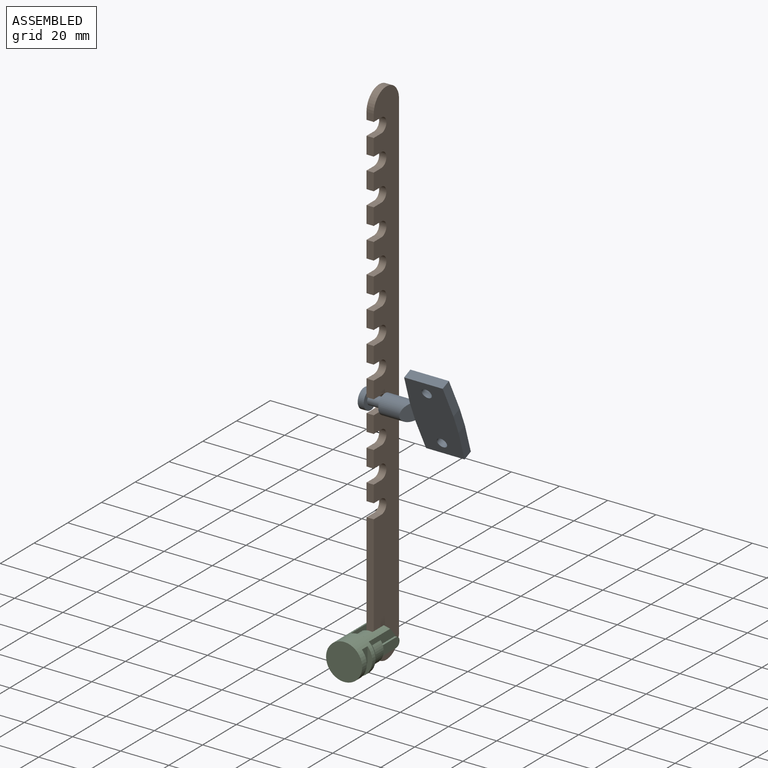
[diagram: assembled view]
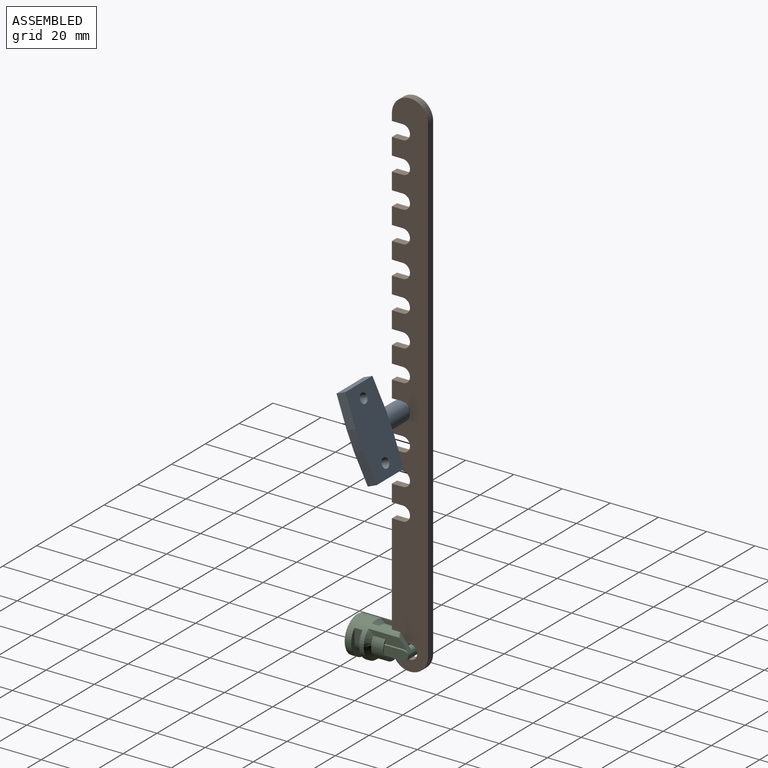
[diagram: assembled view, second angle]
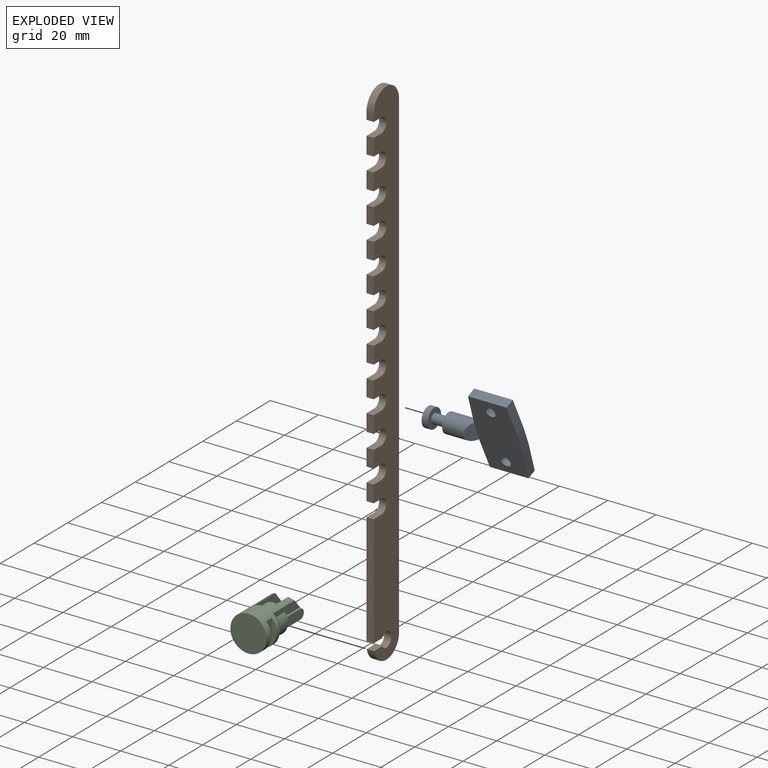
[diagram: exploded view]
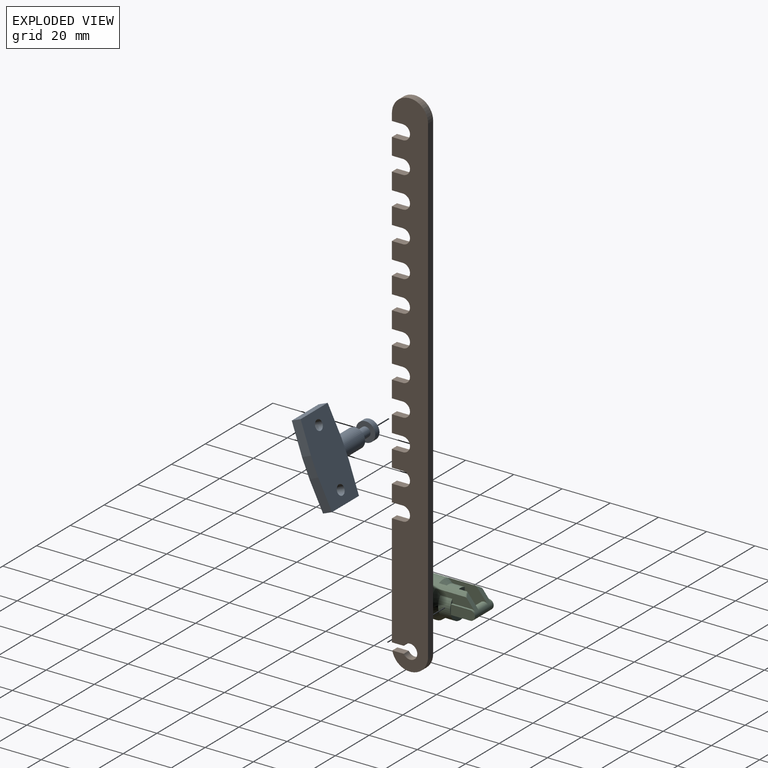
[diagram: exploded view, second angle]
ASSEMBLY  parts=3 mates=2
PART A: 20 faces, bbox 38x8x34 mm
  f0: plane 4x4mm, normal (1,0,0), area 3.4mm2, adj f3,f11,f18
  f1: plane 13x4mm, normal (-1,0,-0.08), area 52.2mm2, adj f2,f9,f11,f12
  f2: plane 16x4mm, normal (0,0,-1), area 64mm2, adj f1,f3,f11,f12
  f3: plane 13x4mm, normal (1,0,-0.08), area 52.2mm2, adj f0,f2,f11,f12
  f4: plane 4x4mm, normal (1,0,0), area 3.4mm2, adj f5,f11,f18
  f5: plane 13x4mm, normal (1,0,0.08), area 52.2mm2, adj f4,f6,f11,f12
  f6: plane 16x4mm, normal (0,0,1), area 64mm2, adj f5,f7,f11,f12
  f7: plane 13x4mm, normal (-1,0,0.08), area 52.2mm2, adj f6,f9,f11,f12
  f8: cylinder r=2.05mm len=4.1mm, axis (0,1,0), area 51.5mm2, adj f11,f12
  f9: plane 8x4mm, normal (-1,0,0), area 32mm2, adj f1,f7,f11,f12
  f10: cylinder r=2.05mm len=4.1mm, axis (0,1,0), area 51.5mm2, adj f11,f12
  f11: plane 34x18mm, normal (0,-1,0), area 559.6mm2, adj f0,f1,f2,f3,f4,f5,f6,f7
  f12: plane 34x18mm, normal (0,1,0), area 559.6mm2, adj f1,f2,f3,f5,f6,f7,f8,f9
  f13: plane 8x8mm, normal (1,0,0), area 37.7mm2, adj f14,f18
  f14: cylinder r=2mm len=6mm, axis (-1,0,0), area 75.4mm2, adj f13,f15
  f15: plane 8x8mm, normal (-1,0,0), area 37.7mm2, adj f14,f16
  f16: cylinder r=4mm len=8mm, axis (-1,0,0), area 62.8mm2, adj f15,f17
  f17: plane 8x8mm, normal (1,0,0), area 50.3mm2, adj f16
  f18: cylinder r=4mm len=11.5mm, axis (-1,0,0), area 266.1mm2, adj f0,f4,f13,f19
  f19: plane 8x4mm, normal (-0.81,0.58,0), area 30.9mm2, adj f12,f18
PART B: 57 faces, bbox 215x3x15 mm
  f0: plane 7x3mm, normal (0,0,-1), area 21mm2, adj f13,f14,f51,f55
  f1: plane 7x3mm, normal (0,0,-1), area 21mm2, adj f13,f14,f48,f52
  f2: plane 7x3mm, normal (0,0,-1), area 21mm2, adj f13,f14,f45,f49
  f3: plane 7x3mm, normal (0,0,-1), area 21mm2, adj f13,f14,f42,f46
  f4: plane 7x3mm, normal (0,0,-1), area 21mm2, adj f13,f14,f39,f43
  f5: plane 7x3mm, normal (0,0,-1), area 21mm2, adj f13,f14,f36,f40
  f6: plane 7x3mm, normal (0,0,-1), area 21mm2, adj f13,f14,f33,f37
  f7: plane 7x3mm, normal (0,0,-1), area 21mm2, adj f13,f14,f30,f34
  f8: plane 7x3mm, normal (0,0,-1), area 21mm2, adj f13,f14,f27,f31
  f9: plane 7x3mm, normal (0,0,-1), area 21mm2, adj f13,f14,f24,f28
  f10: plane 7x3mm, normal (0,0,-1), area 21mm2, adj f13,f14,f21,f25
  f11: plane 3x3mm, normal (0,0,-1), area 9mm2, adj f13,f14,f16,f22
  f12: cylinder r=7.5mm len=14.85mm, axis (0,1,0), area 66.2mm2, adj f13,f14,f17,f18
  f13: plane 215x15mm, normal (0,-1,0), area 2641mm2, adj f0,f1,f2,f3,f4,f5,f6,f7
  f14: plane 215x15mm, normal (0,1,0), area 2641mm2, adj f0,f1,f2,f3,f4,f5,f6,f7
  f15: plane 46.5x3mm, normal (0,0,-1), area 139.5mm2, adj f13,f14,f19,f54
  f16: cylinder r=7.5mm len=15mm, axis (0,1,0), area 70.7mm2, adj f11,f13,f14,f17
  f17: plane 200x3mm, normal (0,0,1), area 600mm2, adj f12,f13,f14,f16
  f18: plane 4.75x3mm, normal (1,0,0), area 14.3mm2, adj f12,f13,f14,f20
  f19: plane 4.9x3mm, normal (-1,0,0), area 14.7mm2, adj f13,f14,f15,f20
  f20: cylinder r=3mm len=6mm, axis (0,1,0), area 47.1mm2, adj f13,f14,f18,f19
  f21: plane 4.5x3mm, normal (1,0,0), area 13.5mm2, adj f10,f13,f14,f23
  f22: plane 4.5x3mm, normal (-1,0,0), area 13.5mm2, adj f11,f13,f14,f23
  f23: cylinder r=3mm len=6mm, axis (0,1,0), area 28.3mm2, adj f13,f14,f21,f22
  f24: plane 4.5x3mm, normal (1,0,0), area 13.5mm2, adj f9,f13,f14,f26
  f25: plane 4.5x3mm, normal (-1,0,0), area 13.5mm2, adj f10,f13,f14,f26
  f26: cylinder r=3mm len=6mm, axis (0,1,0), area 28.3mm2, adj f13,f14,f24,f25
  f27: plane 4.5x3mm, normal (1,0,0), area 13.5mm2, adj f8,f13,f14,f29
  f28: plane 4.5x3mm, normal (-1,0,0), area 13.5mm2, adj f9,f13,f14,f29
  f29: cylinder r=3mm len=6mm, axis (0,1,0), area 28.3mm2, adj f13,f14,f27,f28
  f30: plane 4.5x3mm, normal (1,0,0), area 13.5mm2, adj f7,f13,f14,f32
  f31: plane 4.5x3mm, normal (-1,0,0), area 13.5mm2, adj f8,f13,f14,f32
  f32: cylinder r=3mm len=6mm, axis (0,1,0), area 28.3mm2, adj f13,f14,f30,f31
  f33: plane 4.5x3mm, normal (1,0,0), area 13.5mm2, adj f6,f13,f14,f35
  f34: plane 4.5x3mm, normal (-1,0,0), area 13.5mm2, adj f7,f13,f14,f35
  f35: cylinder r=3mm len=6mm, axis (0,1,0), area 28.3mm2, adj f13,f14,f33,f34
  f36: plane 4.5x3mm, normal (1,0,0), area 13.5mm2, adj f5,f13,f14,f38
  f37: plane 4.5x3mm, normal (-1,0,0), area 13.5mm2, adj f6,f13,f14,f38
  f38: cylinder r=3mm len=6mm, axis (0,1,0), area 28.3mm2, adj f13,f14,f36,f37
  f39: plane 4.5x3mm, normal (1,0,0), area 13.5mm2, adj f4,f13,f14,f41
  f40: plane 4.5x3mm, normal (-1,0,0), area 13.5mm2, adj f5,f13,f14,f41
  f41: cylinder r=3mm len=6mm, axis (0,1,0), area 28.3mm2, adj f13,f14,f39,f40
  f42: plane 4.5x3mm, normal (1,0,0), area 13.5mm2, adj f3,f13,f14,f44
  f43: plane 4.5x3mm, normal (-1,0,0), area 13.5mm2, adj f4,f13,f14,f44
  f44: cylinder r=3mm len=6mm, axis (0,1,0), area 28.3mm2, adj f13,f14,f42,f43
  f45: plane 4.5x3mm, normal (1,0,0), area 13.5mm2, adj f2,f13,f14,f47
  f46: plane 4.5x3mm, normal (-1,0,0), area 13.5mm2, adj f3,f13,f14,f47
  f47: cylinder r=3mm len=6mm, axis (0,1,0), area 28.3mm2, adj f13,f14,f45,f46
  f48: plane 4.5x3mm, normal (1,0,0), area 13.5mm2, adj f1,f13,f14,f50
  f49: plane 4.5x3mm, normal (-1,0,0), area 13.5mm2, adj f2,f13,f14,f50
  f50: cylinder r=3mm len=6mm, axis (0,1,0), area 28.3mm2, adj f13,f14,f48,f49
  f51: plane 4.5x3mm, normal (1,0,0), area 13.5mm2, adj f0,f13,f14,f53
  f52: plane 4.5x3mm, normal (-1,0,0), area 13.5mm2, adj f1,f13,f14,f53
  f53: cylinder r=3mm len=6mm, axis (0,1,0), area 28.3mm2, adj f13,f14,f51,f52
  f54: plane 4.5x3mm, normal (1,0,0), area 13.5mm2, adj f13,f14,f15,f56
  f55: plane 4.5x3mm, normal (-1,0,0), area 13.5mm2, adj f0,f13,f14,f56
  f56: cylinder r=3mm len=6mm, axis (0,1,0), area 28.3mm2, adj f13,f14,f54,f55
PART C: 29 faces, bbox 15.2x15.2x25.1 mm
  f0: plane 16.62x9.08mm, normal (-1,0,0), area 70.1mm2, adj f1,f6,f7,f9,f11,f18,f20,f28
  f1: plane 5.5x4.54mm, normal (0,-0.64,0.77), area 12.8mm2, adj f0,f2,f20,f28
  f2: plane 16.76x4.79mm, normal (1,0,0), area 41mm2, adj f1,f6,f8,f10,f11,f19,f22,f28
  f3: plane 16.62x9.08mm, normal (1,0,0), area 70.1mm2, adj f4,f6,f7,f9,f11,f20,f24,f27
  f4: plane 5.5x4.54mm, normal (0,-0.64,0.77), area 12.8mm2, adj f3,f5,f20,f27
  f5: plane 16.76x4.79mm, normal (-1,0,0), area 41mm2, adj f4,f6,f8,f10,f11,f21,f25,f27
  f6: cylinder r=7.5mm len=20.35mm, axis (0,0,-1), area 313.2mm2, adj f0,f2,f3,f5,f7,f8,f12,f13
  f7: cone r=7.5mm half-angle=36.9deg, axis (0,0,-1), area 14mm2, adj f0,f3,f6,f9
  f8: cone r=7.5mm half-angle=36.9deg, axis (0,0,-1), area 79.6mm2, adj f2,f5,f6,f10
  f9: cylinder r=6mm len=5.4mm, axis (0,0,-1), area 28mm2, adj f0,f3,f7,f11
  f10: cylinder r=6mm len=12mm, axis (0,0,-1), area 134.5mm2, adj f2,f5,f8,f11
  f11: plane 12x12mm, normal (0,0,1), area 79.6mm2, adj f0,f2,f3,f5,f9,f10,f18,f22
  f12: plane 15x12.6mm, normal (0,0,1), area 54.8mm2, adj f6,f15,f16,f17
  f13: plane 15x12.6mm, normal (0,0,-1), area 54.8mm2, adj f6,f15,f16,f17
  f14: plane 15x15mm, normal (0,0,-1), area 176.7mm2, adj f6
  f15: cylinder r=5.5mm len=11mm, axis (0,0,-1), area 57mm2, adj f12,f13,f16,f17
  f16: plane 5.1x3.3mm, normal (1,0,0), area 16.8mm2, adj f6,f12,f13,f15
  f17: plane 5.1x3.3mm, normal (-1,0,0), area 16.8mm2, adj f6,f12,f13,f15
  f18: plane 8x2.85mm, normal (0,1,0), area 22.8mm2, adj f0,f11,f20,f23
  f19: cylinder r=2mm len=1.54mm, axis (-1,0,0), area 1.5mm2, adj f2,f20,f22,f23
  f20: cylinder r=2mm len=11.1mm, axis (-1,0,0), area 93.6mm2, adj f0,f1,f3,f4,f18,f19,f21,f23
  f21: cylinder r=2mm len=1.54mm, axis (-1,0,0), area 1.5mm2, adj f5,f20,f25,f26
  f22: plane 8x0.85mm, normal (0,-1,0), area 6.8mm2, adj f2,f11,f19,f23
  f23: plane 10x4mm, normal (1,0,0), area 38.3mm2, adj f11,f18,f19,f20,f22
  f24: plane 8x2.85mm, normal (0,1,0), area 22.8mm2, adj f3,f11,f20,f26
  f25: plane 8x0.85mm, normal (0,-1,0), area 6.8mm2, adj f5,f11,f21,f26
  f26: plane 10x4mm, normal (-1,0,0), area 38.3mm2, adj f11,f20,f21,f24,f25
  f27: bspline ~2.52x1.49mm, area 1.3mm2, adj f3,f4,f5,f6
  f28: bspline ~2.52x1.49mm, area 1.3mm2, adj f0,f1,f2,f6
PLACE A rot(axis=(0,0.19,-0.98),180deg) t=(17.94,3.14,72.37)mm
PLACE B rot(axis=(-0.58,-0.58,-0.58),120deg) t=(-4.06,6.14,82.37)mm
PLACE C rot(axis=(-1,0,0),90deg) t=(-5.56,-16.76,-17.63)mm
MATE revolute A.f14 <-> B.f47  axis (1,0,0) through (-5.56,3.14,72.37)mm
MATE revolute C.f19 <-> B.f12  axis (-1,0,0) through (-5.56,6.14,-17.63)mm
